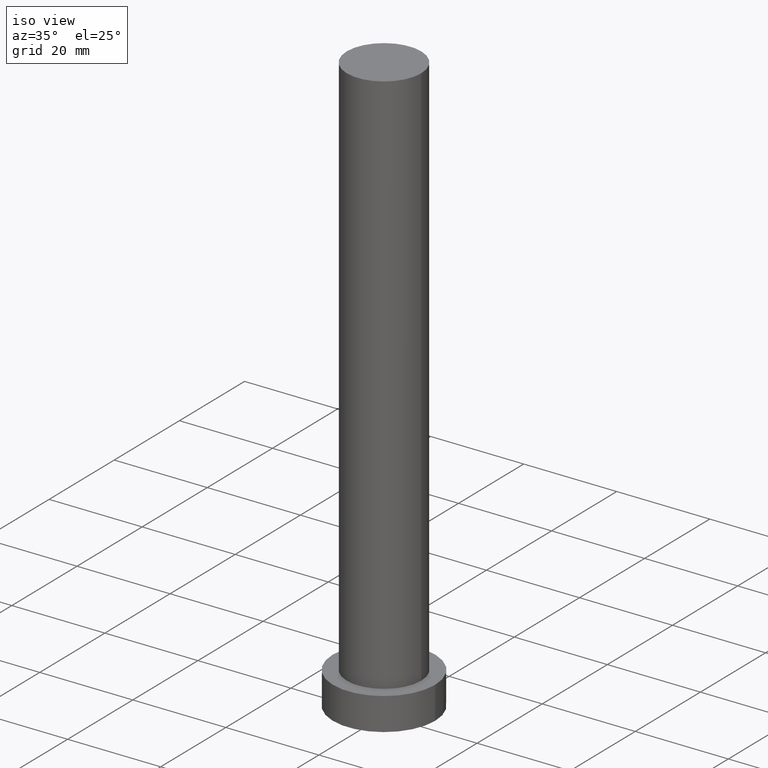
[diagram: clean part render]
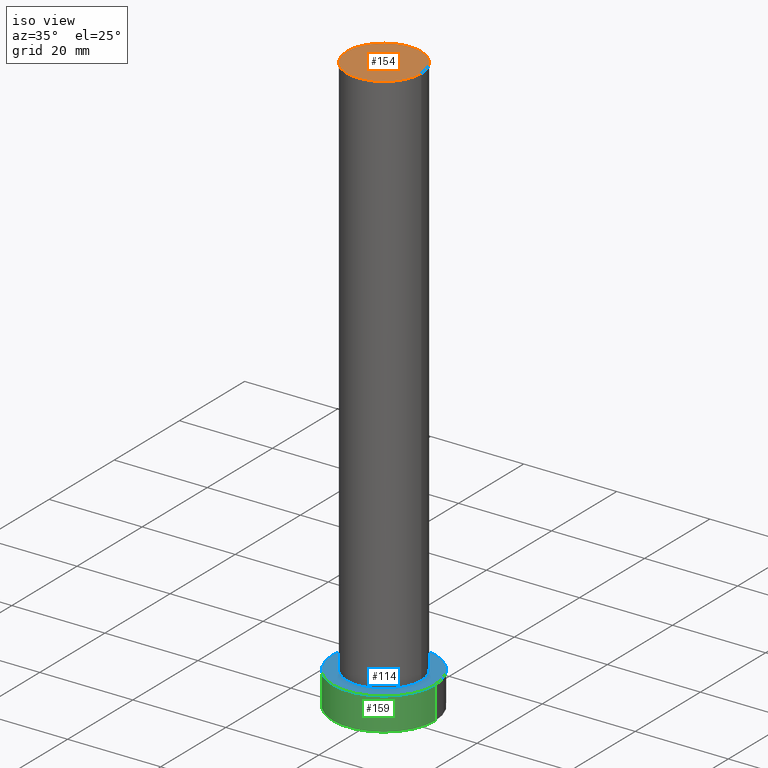
[diagram: same view with three faces highlighted in distinct colors, each labeled with its STEP entity id]
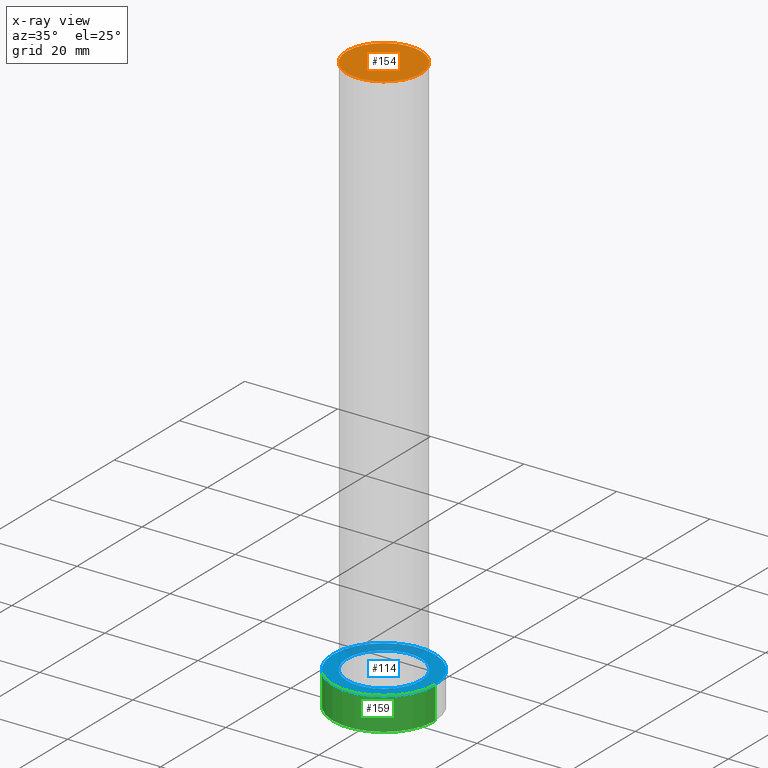
[diagram: x-ray of the same camera — body ghosted, the three highlighted faces saturated]
A machine part, iso view with three faces highlighted in distinct colors.
The next image is the same camera in x-ray (body ghosted, the three faces saturated) — at least one of them is partly hidden behind the body in this view.
Their STEP definitions:

[orange] entity #154 — the highlighted planar face has unit normal (0, 0, 1).
#3 = EDGE_LOOP ( 'NONE', ( #105, #186 ) ) ;
#18 = PLANE ( 'NONE',  #242 ) ;
#25 = CIRCLE ( 'NONE', #163, 8.000000000000000000 ) ;
#33 = CARTESIAN_POINT ( 'NONE',  ( -8.000000000000000000, 0.000000000000000000, 125.0000000000000000 ) ) ;
#66 = CARTESIAN_POINT ( 'NONE',  ( 8.000000000000000000, 9.797174393178825657E-16, 125.0000000000000000 ) ) ;
#68 = DIRECTION ( 'NONE',  ( 0.000000000000000000, 0.000000000000000000, 1.000000000000000000 ) ) ;
#85 = EDGE_CURVE ( 'NONE', #90, #229, #25, .T. ) ;
#90 = VERTEX_POINT ( 'NONE', #33 ) ;
#103 = DIRECTION ( 'NONE',  ( 1.000000000000000000, 0.000000000000000000, 0.000000000000000000 ) ) ;
#105 = ORIENTED_EDGE ( 'NONE', *, *, #85, .T. ) ;
#113 = CARTESIAN_POINT ( 'NONE',  ( 0.000000000000000000, 0.000000000000000000, 125.0000000000000000 ) ) ;
#117 = CARTESIAN_POINT ( 'NONE',  ( 0.000000000000000000, 0.000000000000000000, 125.0000000000000000 ) ) ;
#125 = AXIS2_PLACEMENT_3D ( 'NONE', #143, #68, #103 ) ;
#133 = DIRECTION ( 'NONE',  ( 1.000000000000000000, 0.000000000000000000, 0.000000000000000000 ) ) ;
#137 = CIRCLE ( 'NONE', #125, 8.000000000000000000 ) ;
#143 = CARTESIAN_POINT ( 'NONE',  ( 0.000000000000000000, 0.000000000000000000, 125.0000000000000000 ) ) ;
#154 = ADVANCED_FACE ( 'NONE', ( #238 ), #18, .T. ) ;
#163 = AXIS2_PLACEMENT_3D ( 'NONE', #113, #195, #133 ) ;
#174 = EDGE_CURVE ( 'NONE', #229, #90, #137, .T. ) ;
#179 = DIRECTION ( 'NONE',  ( 1.000000000000000000, 0.000000000000000000, -0.000000000000000000 ) ) ;
#186 = ORIENTED_EDGE ( 'NONE', *, *, #174, .T. ) ;
#195 = DIRECTION ( 'NONE',  ( 0.000000000000000000, 0.000000000000000000, 1.000000000000000000 ) ) ;
#198 = DIRECTION ( 'NONE',  ( 0.000000000000000000, 0.000000000000000000, 1.000000000000000000 ) ) ;
#229 = VERTEX_POINT ( 'NONE', #66 ) ;
#238 = FACE_OUTER_BOUND ( 'NONE', #3, .T. ) ;
#242 = AXIS2_PLACEMENT_3D ( 'NONE', #117, #198, #179 ) ;

[blue] entity #114 — the highlighted planar face has unit normal (0, 0, 1).
#6 = EDGE_LOOP ( 'NONE', ( #250, #248 ) ) ;
#8 = VERTEX_POINT ( 'NONE', #95 ) ;
#14 = VERTEX_POINT ( 'NONE', #80 ) ;
#16 = AXIS2_PLACEMENT_3D ( 'NONE', #41, #120, #189 ) ;
#27 = DIRECTION ( 'NONE',  ( 0.000000000000000000, 0.000000000000000000, 1.000000000000000000 ) ) ;
#35 = DIRECTION ( 'NONE',  ( 1.000000000000000000, 0.000000000000000000, -0.000000000000000000 ) ) ;
#37 = DIRECTION ( 'NONE',  ( 1.000000000000000000, 0.000000000000000000, 0.000000000000000000 ) ) ;
#41 = CARTESIAN_POINT ( 'NONE',  ( 0.000000000000000000, 0.000000000000000000, 7.000000000000000000 ) ) ;
#49 = EDGE_LOOP ( 'NONE', ( #50, #153 ) ) ;
#50 = ORIENTED_EDGE ( 'NONE', *, *, #161, .F. ) ;
#51 = CARTESIAN_POINT ( 'NONE',  ( 0.000000000000000000, 0.000000000000000000, 7.000000000000000000 ) ) ;
#55 = CIRCLE ( 'NONE', #99, 11.00000000000000000 ) ;
#57 = AXIS2_PLACEMENT_3D ( 'NONE', #63, #61, #37 ) ;
#61 = DIRECTION ( 'NONE',  ( 0.000000000000000000, 0.000000000000000000, 1.000000000000000000 ) ) ;
#63 = CARTESIAN_POINT ( 'NONE',  ( 0.000000000000000000, 0.000000000000000000, 7.000000000000000000 ) ) ;
#73 = AXIS2_PLACEMENT_3D ( 'NONE', #79, #27, #156 ) ;
#74 = CARTESIAN_POINT ( 'NONE',  ( 11.00000000000000000, 1.347111479062088405E-15, 7.000000000000000000 ) ) ;
#79 = CARTESIAN_POINT ( 'NONE',  ( 0.000000000000000000, 0.000000000000000000, 7.000000000000000000 ) ) ;
#80 = CARTESIAN_POINT ( 'NONE',  ( 8.000000000000000000, 9.797174393178825657E-16, 7.000000000000000000 ) ) ;
#95 = CARTESIAN_POINT ( 'NONE',  ( -8.000000000000000000, 0.000000000000000000, 7.000000000000000000 ) ) ;
#99 = AXIS2_PLACEMENT_3D ( 'NONE', #197, #253, #141 ) ;
#108 = EDGE_CURVE ( 'NONE', #14, #8, #167, .T. ) ;
#110 = FACE_BOUND ( 'NONE', #49, .T. ) ;
#114 = ADVANCED_FACE ( 'NONE', ( #110, #176 ), #232, .T. ) ;
#120 = DIRECTION ( 'NONE',  ( 0.000000000000000000, 0.000000000000000000, 1.000000000000000000 ) ) ;
#138 = DIRECTION ( 'NONE',  ( 0.000000000000000000, 0.000000000000000000, 1.000000000000000000 ) ) ;
#140 = EDGE_CURVE ( 'NONE', #168, #223, #55, .T. ) ;
#141 = DIRECTION ( 'NONE',  ( 1.000000000000000000, 0.000000000000000000, 0.000000000000000000 ) ) ;
#142 = CIRCLE ( 'NONE', #16, 11.00000000000000000 ) ;
#153 = ORIENTED_EDGE ( 'NONE', *, *, #108, .F. ) ;
#156 = DIRECTION ( 'NONE',  ( 1.000000000000000000, 0.000000000000000000, 0.000000000000000000 ) ) ;
#161 = EDGE_CURVE ( 'NONE', #8, #14, #206, .T. ) ;
#167 = CIRCLE ( 'NONE', #73, 8.000000000000000000 ) ;
#168 = VERTEX_POINT ( 'NONE', #74 ) ;
#176 = FACE_OUTER_BOUND ( 'NONE', #6, .T. ) ;
#189 = DIRECTION ( 'NONE',  ( 1.000000000000000000, 0.000000000000000000, 0.000000000000000000 ) ) ;
#197 = CARTESIAN_POINT ( 'NONE',  ( 0.000000000000000000, 0.000000000000000000, 7.000000000000000000 ) ) ;
#206 = CIRCLE ( 'NONE', #57, 8.000000000000000000 ) ;
#216 = AXIS2_PLACEMENT_3D ( 'NONE', #51, #138, #35 ) ;
#223 = VERTEX_POINT ( 'NONE', #243 ) ;
#232 = PLANE ( 'NONE',  #216 ) ;
#234 = EDGE_CURVE ( 'NONE', #223, #168, #142, .T. ) ;
#243 = CARTESIAN_POINT ( 'NONE',  ( -11.00000000000000000, 0.000000000000000000, 7.000000000000000000 ) ) ;
#248 = ORIENTED_EDGE ( 'NONE', *, *, #140, .T. ) ;
#250 = ORIENTED_EDGE ( 'NONE', *, *, #234, .T. ) ;
#253 = DIRECTION ( 'NONE',  ( 0.000000000000000000, 0.000000000000000000, 1.000000000000000000 ) ) ;

[green] entity #159 — the highlighted cylindrical surface (partial cylindrical patch) has radius 11 mm, axis along (-0, -0, -1).
#9 = CARTESIAN_POINT ( 'NONE',  ( -11.00000000000000000, 0.000000000000000000, 7.000000000000000000 ) ) ;
#12 = CARTESIAN_POINT ( 'NONE',  ( 11.00000000000000000, 1.347111479062088405E-15, 0.000000000000000000 ) ) ;
#13 = CIRCLE ( 'NONE', #21, 11.00000000000000000 ) ;
#16 = AXIS2_PLACEMENT_3D ( 'NONE', #41, #120, #189 ) ;
#17 = CARTESIAN_POINT ( 'NONE',  ( 11.00000000000000000, 1.347111479062088405E-15, 7.000000000000000000 ) ) ;
#21 = AXIS2_PLACEMENT_3D ( 'NONE', #129, #231, #135 ) ;
#41 = CARTESIAN_POINT ( 'NONE',  ( 0.000000000000000000, 0.000000000000000000, 7.000000000000000000 ) ) ;
#43 = VERTEX_POINT ( 'NONE', #131 ) ;
#53 = EDGE_CURVE ( 'NONE', #223, #43, #230, .T. ) ;
#56 = DIRECTION ( 'NONE',  ( -0.000000000000000000, -0.000000000000000000, -1.000000000000000000 ) ) ;
#60 = EDGE_CURVE ( 'NONE', #43, #107, #13, .T. ) ;
#70 = ORIENTED_EDGE ( 'NONE', *, *, #60, .T. ) ;
#74 = CARTESIAN_POINT ( 'NONE',  ( 11.00000000000000000, 1.347111479062088405E-15, 7.000000000000000000 ) ) ;
#81 = CYLINDRICAL_SURFACE ( 'NONE', #218, 11.00000000000000000 ) ;
#86 = ORIENTED_EDGE ( 'NONE', *, *, #234, .F. ) ;
#92 = DIRECTION ( 'NONE',  ( -0.000000000000000000, -0.000000000000000000, -1.000000000000000000 ) ) ;
#102 = EDGE_CURVE ( 'NONE', #168, #107, #191, .T. ) ;
#107 = VERTEX_POINT ( 'NONE', #12 ) ;
#111 = ORIENTED_EDGE ( 'NONE', *, *, #102, .F. ) ;
#120 = DIRECTION ( 'NONE',  ( 0.000000000000000000, 0.000000000000000000, 1.000000000000000000 ) ) ;
#129 = CARTESIAN_POINT ( 'NONE',  ( 0.000000000000000000, 0.000000000000000000, 0.000000000000000000 ) ) ;
#131 = CARTESIAN_POINT ( 'NONE',  ( -11.00000000000000000, 0.000000000000000000, 0.000000000000000000 ) ) ;
#135 = DIRECTION ( 'NONE',  ( 1.000000000000000000, 0.000000000000000000, 0.000000000000000000 ) ) ;
#139 = VECTOR ( 'NONE', #56, 1000.000000000000000 ) ;
#142 = CIRCLE ( 'NONE', #16, 11.00000000000000000 ) ;
#158 = EDGE_LOOP ( 'NONE', ( #111, #86, #222, #70 ) ) ;
#159 = ADVANCED_FACE ( 'NONE', ( #255 ), #81, .T. ) ;
#164 = CARTESIAN_POINT ( 'NONE',  ( 0.000000000000000000, 0.000000000000000000, 7.000000000000000000 ) ) ;
#168 = VERTEX_POINT ( 'NONE', #74 ) ;
#189 = DIRECTION ( 'NONE',  ( 1.000000000000000000, 0.000000000000000000, 0.000000000000000000 ) ) ;
#191 = LINE ( 'NONE', #17, #224 ) ;
#200 = DIRECTION ( 'NONE',  ( -0.000000000000000000, -0.000000000000000000, -1.000000000000000000 ) ) ;
#218 = AXIS2_PLACEMENT_3D ( 'NONE', #164, #200, #240 ) ;
#222 = ORIENTED_EDGE ( 'NONE', *, *, #53, .T. ) ;
#223 = VERTEX_POINT ( 'NONE', #243 ) ;
#224 = VECTOR ( 'NONE', #92, 1000.000000000000000 ) ;
#230 = LINE ( 'NONE', #9, #139 ) ;
#231 = DIRECTION ( 'NONE',  ( 0.000000000000000000, 0.000000000000000000, 1.000000000000000000 ) ) ;
#234 = EDGE_CURVE ( 'NONE', #223, #168, #142, .T. ) ;
#240 = DIRECTION ( 'NONE',  ( -1.000000000000000000, 0.000000000000000000, 0.000000000000000000 ) ) ;
#243 = CARTESIAN_POINT ( 'NONE',  ( -11.00000000000000000, 0.000000000000000000, 7.000000000000000000 ) ) ;
#255 = FACE_OUTER_BOUND ( 'NONE', #158, .T. ) ;